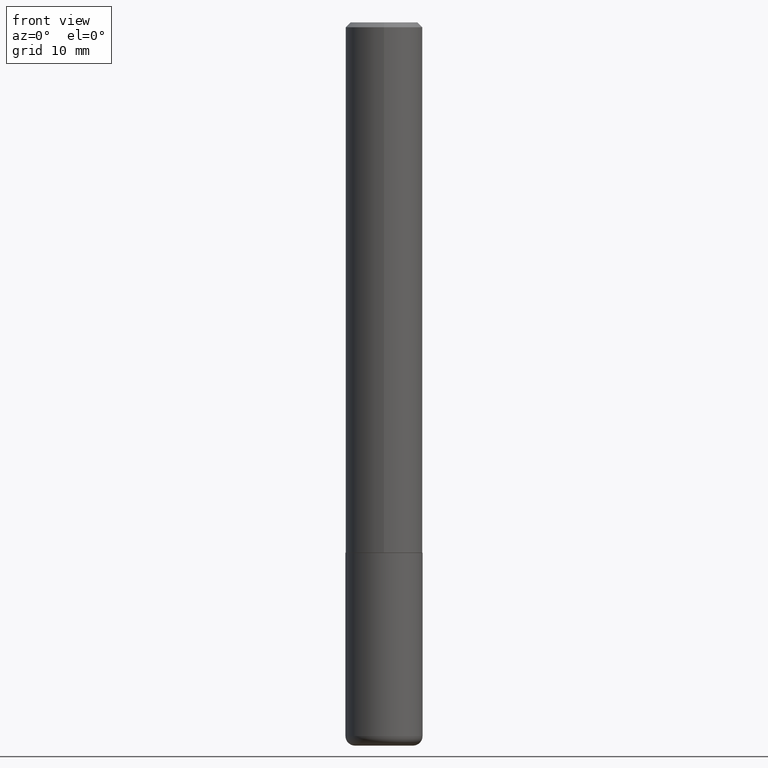
[diagram: clean part render]
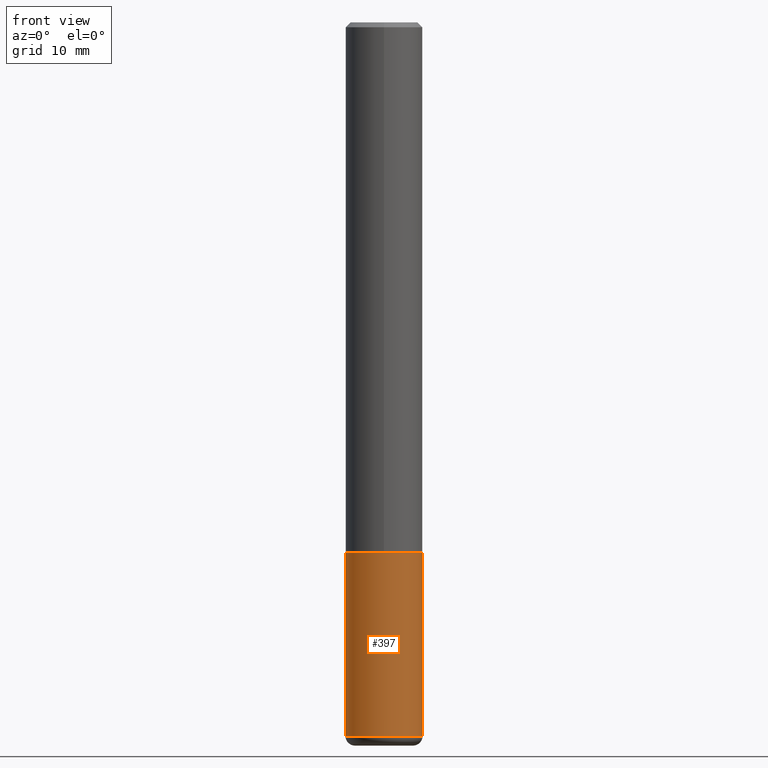
[diagram: same view with one face highlighted and labeled with its STEP entity id]
A machine part, front view. The second image highlights one B-rep face of the part: STEP entity #397.
In plain terms, the highlighted cylindrical surface (partial cylindrical patch) has radius 4.0005 mm, axis along (-0, 0, 1).
Its self-contained STEP definition (entity closure, byte-faithful):
#26 = EDGE_CURVE ( 'NONE', #377, #386, #387, .T. ) ;
#28 = DIRECTION ( 'NONE',  ( -2.445468806185136877E-29, 3.491481338843145188E-15, 1.000000000000000000 ) ) ;
#33 = ORIENTED_EDGE ( 'NONE', *, *, #381, .F. ) ;
#40 = VECTOR ( 'NONE', #100, 39.37007874015748143 ) ;
#65 = VECTOR ( 'NONE', #28, 39.37007874015748143 ) ;
#68 = CARTESIAN_POINT ( 'NONE',  ( -0.1575000000000000011, -7.747162903036124976E-15, -2.165399999999999991 ) ) ;
#92 = FACE_OUTER_BOUND ( 'NONE', #119, .T. ) ;
#100 = DIRECTION ( 'NONE',  ( -2.445468806185136877E-29, 3.491481338843145188E-15, 1.000000000000000000 ) ) ;
#109 = DIRECTION ( 'NONE',  ( 1.000000000000000000, -6.982962677686268288E-15, 0.000000000000000000 ) ) ;
#119 = EDGE_LOOP ( 'NONE', ( #33, #158, #297, #402 ) ) ;
#146 = AXIS2_PLACEMENT_3D ( 'NONE', #186, #213, #154 ) ;
#154 = DIRECTION ( 'NONE',  ( 1.000000000000000000, -6.982962677686261977E-15, 0.000000000000000000 ) ) ;
#158 = ORIENTED_EDGE ( 'NONE', *, *, #298, .T. ) ;
#165 = DIRECTION ( 'NONE',  ( 1.000000000000000000, -6.982962677686265922E-15, 4.876176775795935232E-29 ) ) ;
#166 = CARTESIAN_POINT ( 'NONE',  ( 0.000000000000000000, 0.000000000000000000, 0.000000000000000000 ) ) ;
#168 = DIRECTION ( 'NONE',  ( -2.445468806185136597E-29, 3.491481338843145583E-15, 1.000000000000000000 ) ) ;
#181 = CIRCLE ( 'NONE', #146, 0.1575000000000000011 ) ;
#186 = CARTESIAN_POINT ( 'NONE',  ( 7.124628819939776708E-29, -1.017208173258561931E-14, -2.913399999999999768 ) ) ;
#190 = CARTESIAN_POINT ( 'NONE',  ( 0.1575000000000000011, -1.099816621735586889E-15, 7.679978421878598033E-30 ) ) ;
#201 = CARTESIAN_POINT ( 'NONE',  ( 0.1575000000000000011, -8.660270312866534114E-15, -2.165399999999999991 ) ) ;
#213 = DIRECTION ( 'NONE',  ( -2.445468806185136597E-29, 3.491481338843145583E-15, 1.000000000000000000 ) ) ;
#216 = AXIS2_PLACEMENT_3D ( 'NONE', #398, #363, #109 ) ;
#225 = VERTEX_POINT ( 'NONE', #293 ) ;
#267 = CYLINDRICAL_SURFACE ( 'NONE', #335, 0.1575000000000000011 ) ;
#270 = CARTESIAN_POINT ( 'NONE',  ( -0.1575000000000000011, 1.119104808822157801E-15, -7.747322767151475583E-30 ) ) ;
#280 = EDGE_CURVE ( 'NONE', #225, #386, #323, .T. ) ;
#293 = CARTESIAN_POINT ( 'NONE',  ( 0.1575000000000000289, -1.127189835432120758E-14, -2.913399999999999768 ) ) ;
#297 = ORIENTED_EDGE ( 'NONE', *, *, #280, .T. ) ;
#298 = EDGE_CURVE ( 'NONE', #351, #225, #181, .T. ) ;
#323 = LINE ( 'NONE', #190, #65 ) ;
#335 = AXIS2_PLACEMENT_3D ( 'NONE', #166, #168, #165 ) ;
#351 = VERTEX_POINT ( 'NONE', #379 ) ;
#363 = DIRECTION ( 'NONE',  ( -2.445468806185136597E-29, 3.491481338843145583E-15, 1.000000000000000000 ) ) ;
#377 = VERTEX_POINT ( 'NONE', #68 ) ;
#379 = CARTESIAN_POINT ( 'NONE',  ( -0.1575000000000000289, -9.052976923763463288E-15, -2.913399999999999768 ) ) ;
#381 = EDGE_CURVE ( 'NONE', #351, #377, #390, .T. ) ;
#386 = VERTEX_POINT ( 'NONE', #201 ) ;
#387 = CIRCLE ( 'NONE', #216, 0.1575000000000000011 ) ;
#390 = LINE ( 'NONE', #270, #40 ) ;
#397 = ADVANCED_FACE ( 'NONE', ( #92 ), #267, .T. ) ;
#398 = CARTESIAN_POINT ( 'NONE',  ( 5.295418152913294345E-29, -7.560453691130947423E-15, -2.165399999999999991 ) ) ;
#402 = ORIENTED_EDGE ( 'NONE', *, *, #26, .F. ) ;